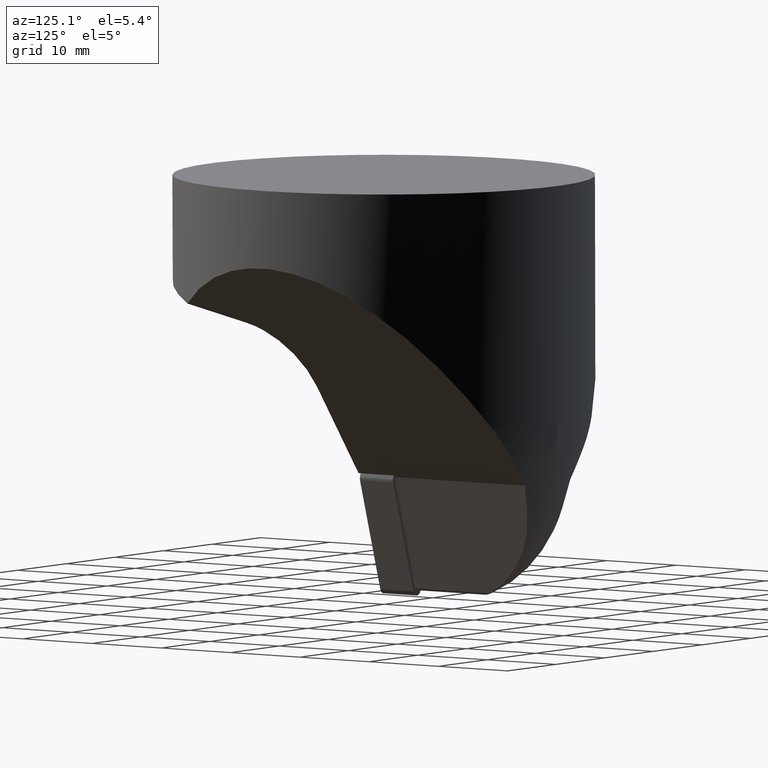
[diagram: clean part render]
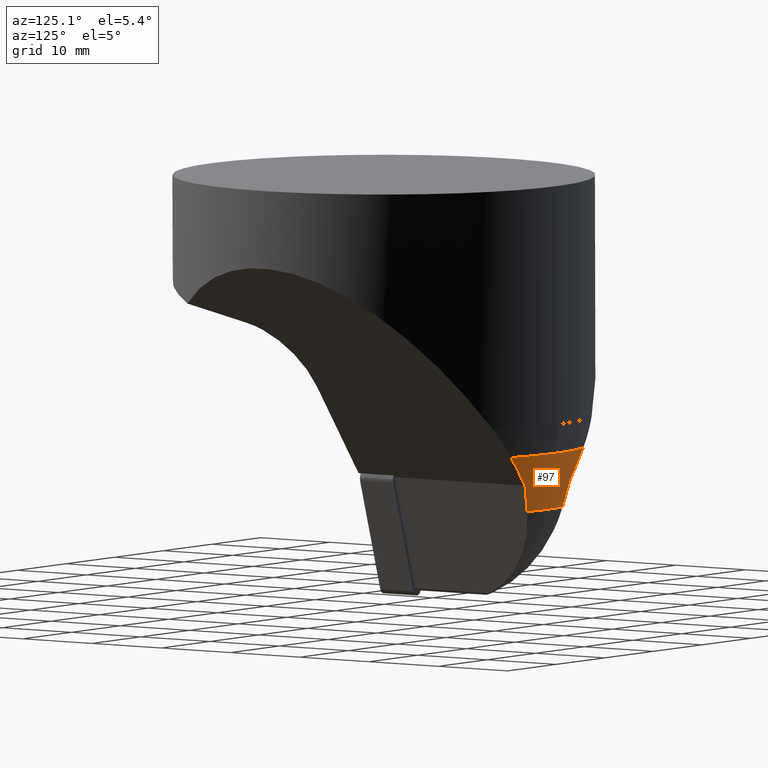
[diagram: same view with one face highlighted and labeled with its STEP entity id]
A machine part, auxiliary view. The second image highlights one B-rep face of the part: STEP entity #97.
In plain terms, the highlighted conical surface has half-angle 10 deg.
Its self-contained STEP definition (entity closure, byte-faithful):
#97=ADVANCED_FACE('',(#149),#150,.T.);
#149=FACE_OUTER_BOUND('',#278,.T.);
#150=CONICAL_SURFACE('',#279,23.2367301929155,0.174532924999441);
#278=EDGE_LOOP('',(#463,#464,#465,#466,#467,#468,#469,#470));
#279=AXIS2_PLACEMENT_3D('',#471,#472,#473);
#463=ORIENTED_EDGE('',*,*,#565,.T.);
#464=ORIENTED_EDGE('',*,*,#571,.F.);
#465=ORIENTED_EDGE('',*,*,#580,.F.);
#466=ORIENTED_EDGE('',*,*,#581,.T.);
#467=ORIENTED_EDGE('',*,*,#582,.T.);
#468=ORIENTED_EDGE('',*,*,#583,.F.);
#469=ORIENTED_EDGE('',*,*,#578,.F.);
#470=ORIENTED_EDGE('',*,*,#559,.T.);
#471=CARTESIAN_POINT('',(3.77945903083374E-014,-1.37188709364429E-015,-40.000000000001));
#472=DIRECTION('',(-0.0,-0.0,1.0));
#473=DIRECTION('',(1.0,0.0,0.0));
#559=EDGE_CURVE('',#666,#664,#667,.T.);
#565=EDGE_CURVE('',#664,#675,#677,.T.);
#571=EDGE_CURVE('',#684,#675,#686,.T.);
#578=EDGE_CURVE('',#666,#696,#698,.T.);
#580=EDGE_CURVE('',#699,#684,#701,.T.);
#581=EDGE_CURVE('',#699,#702,#703,.T.);
#582=EDGE_CURVE('',#702,#704,#705,.T.);
#583=EDGE_CURVE('',#696,#704,#706,.T.);
#664=VERTEX_POINT('',#836);
#666=VERTEX_POINT('',#839);
#667=ELLIPSE('',#840,39.4060995806154,23.6348780647814);
#675=VERTEX_POINT('',#850);
#677=ELLIPSE('',#877,103.925919639352,25.9074131871865);
#684=VERTEX_POINT('',#937);
#686=CIRCLE('',#939,23.5133740915204);
#696=VERTEX_POINT('',#949);
#698=CIRCLE('',#951,24.696155060248);
#699=VERTEX_POINT('',#952);
#701=CIRCLE('',#979,23.5133740915204);
#702=VERTEX_POINT('',#980);
#703=ELLIPSE('',#981,103.925918053196,25.9074127917782);
#704=VERTEX_POINT('',#982);
#705=ELLIPSE('',#983,39.406099354214,23.6348779289911);
#706=CIRCLE('',#984,24.696155060248);
#836=CARTESIAN_POINT('',(4.63994938400572,23.6208607958629,-35.2614168606011));
#839=CARTESIAN_POINT('',(7.40431495258597,23.5600550687542,-31.7231902827742));
#840=AXIS2_PLACEMENT_3D('',#1059,#1060,#1061);
#850=CARTESIAN_POINT('',(3.64056017313714,23.2298317426871,-38.4310744873298));
#877=AXIS2_PLACEMENT_3D('',#1070,#1071,#1072);
#937=CARTESIAN_POINT('',(4.5451618162155E-014,23.5133740915205,-38.4310744873298));
#939=AXIS2_PLACEMENT_3D('',#1078,#1079,#1080);
#949=CARTESIAN_POINT('',(3.93067936706263E-014,24.696155060248,-31.7231902827742));
#951=AXIS2_PLACEMENT_3D('',#1099,#1100,#1101);
#952=CARTESIAN_POINT('',(-3.64056075928514,23.2298316508264,-38.4310744873298));
#979=AXIS2_PLACEMENT_3D('',#1102,#1103,#1104);
#980=CARTESIAN_POINT('',(-4.63994997015373,23.6208606807232,-35.2614168606011));
#981=AXIS2_PLACEMENT_3D('',#1105,#1106,#1107);
#982=CARTESIAN_POINT('',(-7.40431553873398,23.5600548845429,-31.7231902827741));
#983=AXIS2_PLACEMENT_3D('',#1108,#1109,#1110);
#984=AXIS2_PLACEMENT_3D('',#1111,#1112,#1113);
#1059=CARTESIAN_POINT('',(5.47538126560923,-1.15235862327442E-015,-34.1921128144754));
#1060=DIRECTION('',(-0.788010753606722,1.31871149599113E-016,0.615661475325658));
#1061=DIRECTION('',(-0.615661475325658,-3.14348164889296E-016,-0.788010753606722));
#1070=CARTESIAN_POINT('',(17.4768093588615,2.79069708909036E-015,5.45190151431585));
#1071=DIRECTION('',(-0.953716950748227,1.48403700808922E-016,0.300705799504273));
#1072=DIRECTION('',(-0.300705799504273,1.38633310293717E-016,-0.953716950748227));
#1078=CARTESIAN_POINT('',(2.10101203730162E-013,-1.33209847400397E-015,-38.4310744873298));
#1079=DIRECTION('',(0.0,0.0,-1.0));
#1080=DIRECTION('',(1.0,0.0,0.0));
#1099=CARTESIAN_POINT('',(2.20759344766563E-013,-1.16198382001198E-015,-31.7231902827742));
#1100=DIRECTION('',(0.0,0.0,1.0));
#1101=DIRECTION('',(1.0,0.0,0.0));
#1102=CARTESIAN_POINT('',(2.10101203730162E-013,-1.33209847400397E-015,-38.4310744873298));
#1103=DIRECTION('',(0.0,0.0,-1.0));
#1104=DIRECTION('',(1.0,0.0,0.0));
#1105=CARTESIAN_POINT('',(-17.4768090921233,-2.70434378975448E-014,5.45189880930633));
#1106=DIRECTION('',(0.953716950748227,-1.32815430293717E-016,0.300705799504273));
#1107=DIRECTION('',(-0.300705799504273,-2.65641100808922E-016,0.953716950748227));
#1108=CARTESIAN_POINT('',(-5.47538123415087,1.01763222373075E-014,-34.1921136049755));
#1109=DIRECTION('',(0.788010753606722,-1.00731325110704E-016,0.615661475325658));
#1110=DIRECTION('',(-0.615661475325658,1.84479450400887E-016,0.788010753606722));
#1111=CARTESIAN_POINT('',(2.20759344766563E-013,-1.16198382001198E-015,-31.7231902827742));
#1112=DIRECTION('',(0.0,0.0,1.0));
#1113=DIRECTION('',(1.0,0.0,0.0));